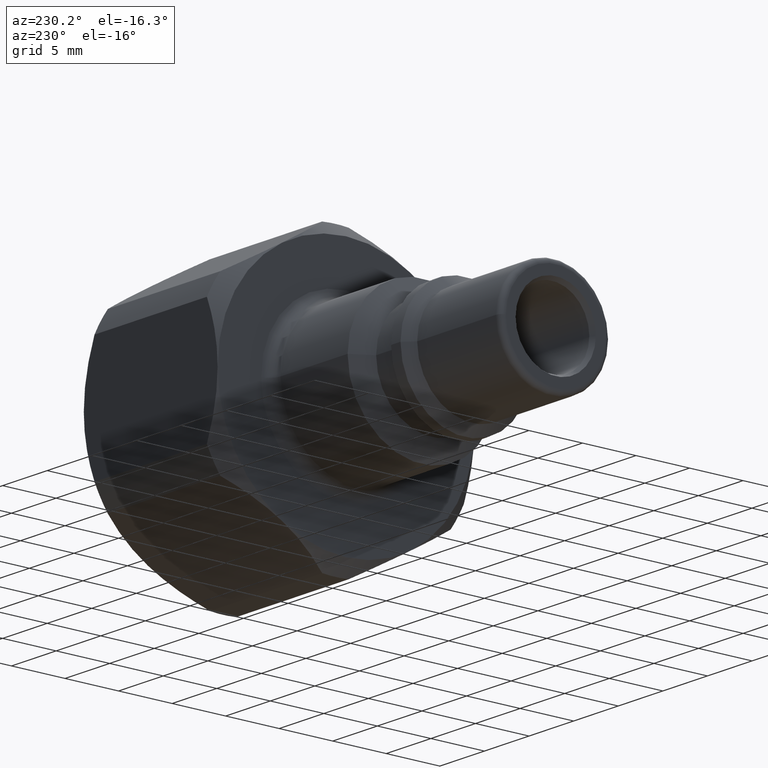
[diagram: clean part render]
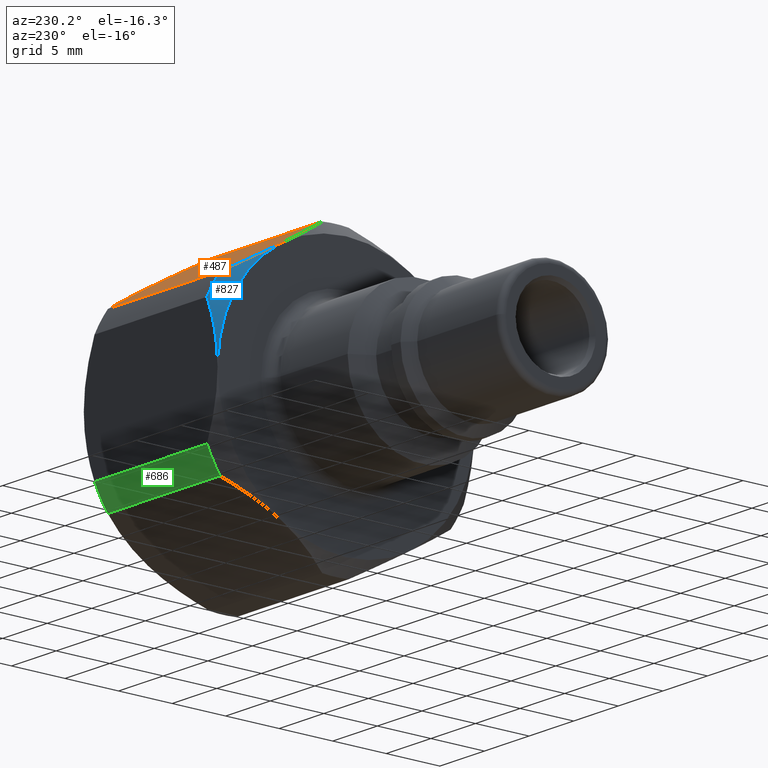
[diagram: same view with three faces highlighted in distinct colors, each labeled with its STEP entity id]
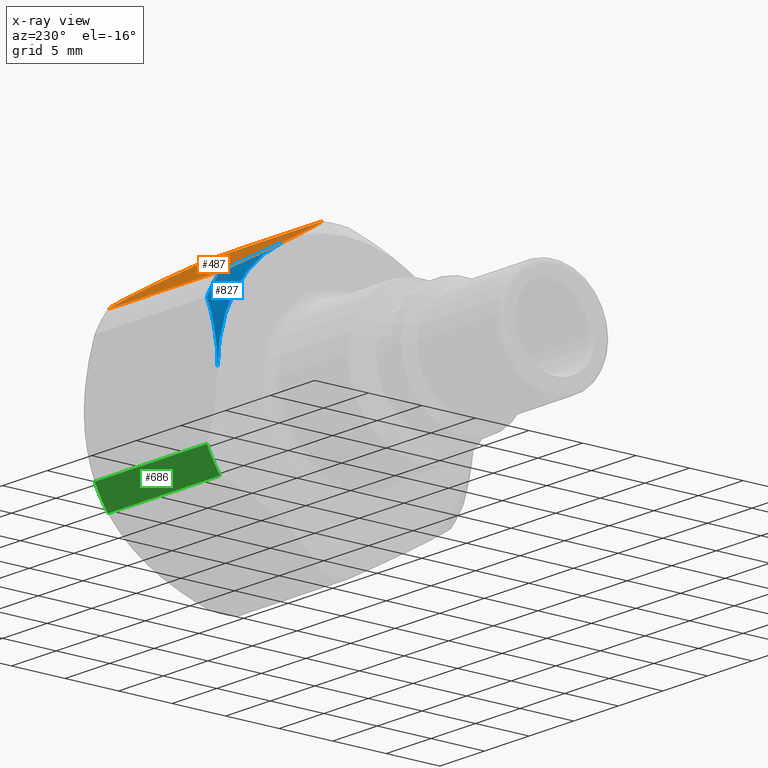
[diagram: x-ray of the same camera — body ghosted, the three highlighted faces saturated]
A machine part, auxiliary view with three faces highlighted in distinct colors.
The next image is the same camera in x-ray (body ghosted, the three faces saturated) — at least one of them is partly hidden behind the body in this view.
Their STEP definitions:

[orange] entity #487 — the highlighted planar face has unit normal (0, -0.5, -0.866).
#404=CARTESIAN_POINT('',(42.885558294457141,6.000000000000002,10.392304845413264));
#405=DIRECTION('',(0.0,-0.500000000000000,-0.866025403784439));
#406=DIRECTION('',(0.0,0.866025403784439,-0.500000000000000));
#407=AXIS2_PLACEMENT_3D('',#404,#405,#406);
#408=PLANE('',#407);
#409=CARTESIAN_POINT('',(24.699999999999996,1.237647640083741,13.141850262386768));
#410=VERTEX_POINT('',#409);
#411=CARTESIAN_POINT('',(23.499999999999996,6.000000000000002,10.392304845413264));
#412=VERTEX_POINT('',#411);
#413=CARTESIAN_POINT('',(24.699999999999996,1.237647640083745,13.141850262386768));
#414=CARTESIAN_POINT('',(23.500000000000000,3.732213161944646,11.701612186829216));
#415=CARTESIAN_POINT('',(23.500000000000000,6.000000000000002,10.392304845413264));
#423=(BOUNDED_CURVE()B_SPLINE_CURVE(2,(#413,#414,#415),.UNSPECIFIED.,.F.,.U.)B_SPLINE_CURVE_WITH_KNOTS((3,3),(0.0,0.565685500897023),.UNSPECIFIED.)CURVE()GEOMETRIC_REPRESENTATION_ITEM()RATIONAL_B_SPLINE_CURVE((1.0,1.024695076595943,1.0))REPRESENTATION_ITEM(''));
#424=EDGE_CURVE('',#410,#412,#423,.T.);
#425=ORIENTED_EDGE('',*,*,#424,.F.);
#426=CARTESIAN_POINT('',(37.299999999999990,1.237647640083741,13.141850262386768));
#427=VERTEX_POINT('',#426);
#428=CARTESIAN_POINT('',(37.299999999999990,1.237647640083741,13.141850262386768));
#429=DIRECTION('',(-1.0,0.0,0.0));
#430=VECTOR('',#429,12.599999999999994);
#431=LINE('',#428,#430);
#432=EDGE_CURVE('',#427,#410,#431,.T.);
#433=ORIENTED_EDGE('',*,*,#432,.F.);
#434=CARTESIAN_POINT('',(38.500000000000000,6.000000000000002,10.392304845413264));
#435=VERTEX_POINT('',#434);
#436=CARTESIAN_POINT('',(38.499999999999993,6.000000000000002,10.392304845413264));
#437=CARTESIAN_POINT('',(38.499999999999993,3.732213161944633,11.701612186829223));
#438=CARTESIAN_POINT('',(37.299999999999990,1.237647640083736,13.141850262386772));
#446=(BOUNDED_CURVE()B_SPLINE_CURVE(2,(#436,#437,#438),.UNSPECIFIED.,.F.,.U.)B_SPLINE_CURVE_WITH_KNOTS((3,3),(0.565685500897025,1.131371001794049),.UNSPECIFIED.)CURVE()GEOMETRIC_REPRESENTATION_ITEM()RATIONAL_B_SPLINE_CURVE((1.0,1.024695076595943,1.0))REPRESENTATION_ITEM(''));
#447=EDGE_CURVE('',#435,#427,#446,.T.);
#448=ORIENTED_EDGE('',*,*,#447,.F.);
#449=CARTESIAN_POINT('',(37.299999999999990,10.762352359916264,7.642759428439762));
#450=VERTEX_POINT('',#449);
#451=CARTESIAN_POINT('',(37.299999999999990,10.762352359916269,7.642759428439758));
#452=CARTESIAN_POINT('',(38.499999999999993,8.267786838055374,9.082997503997307));
#453=CARTESIAN_POINT('',(38.499999999999993,6.000000000000002,10.392304845413264));
#461=(BOUNDED_CURVE()B_SPLINE_CURVE(2,(#451,#452,#453),.UNSPECIFIED.,.F.,.U.)B_SPLINE_CURVE_WITH_KNOTS((3,3),(0.0,0.565685500897025),.UNSPECIFIED.)CURVE()GEOMETRIC_REPRESENTATION_ITEM()RATIONAL_B_SPLINE_CURVE((1.0,1.024695076595942,1.0))REPRESENTATION_ITEM(''));
#462=EDGE_CURVE('',#450,#435,#461,.T.);
#463=ORIENTED_EDGE('',*,*,#462,.F.);
#464=CARTESIAN_POINT('',(24.699999999999996,10.762352359916264,7.642759428439762));
#465=VERTEX_POINT('',#464);
#466=CARTESIAN_POINT('',(24.699999999999996,10.762352359916264,7.642759428439762));
#467=DIRECTION('',(1.0,0.0,0.0));
#468=VECTOR('',#467,12.599999999999994);
#469=LINE('',#466,#468);
#470=EDGE_CURVE('',#465,#450,#469,.T.);
#471=ORIENTED_EDGE('',*,*,#470,.F.);
#472=CARTESIAN_POINT('',(23.500000000000000,6.000000000000002,10.392304845413264));
#473=CARTESIAN_POINT('',(23.500000000000000,8.267786838055358,9.082997503997314));
#474=CARTESIAN_POINT('',(24.699999999999996,10.762352359916260,7.642759428439763));
#482=(BOUNDED_CURVE()B_SPLINE_CURVE(2,(#472,#473,#474),.UNSPECIFIED.,.F.,.U.)B_SPLINE_CURVE_WITH_KNOTS((3,3),(0.565685500897023,1.131371001794047),.UNSPECIFIED.)CURVE()GEOMETRIC_REPRESENTATION_ITEM()RATIONAL_B_SPLINE_CURVE((1.0,1.024695076595975,1.0))REPRESENTATION_ITEM(''));
#483=EDGE_CURVE('',#412,#465,#482,.T.);
#484=ORIENTED_EDGE('',*,*,#483,.F.);
#485=EDGE_LOOP('',(#425,#433,#448,#463,#471,#484));
#486=FACE_OUTER_BOUND('',#485,.T.);
#487=ADVANCED_FACE('',(#486),#408,.F.);

[blue] entity #827 — the highlighted conical surface has half-angle 45 deg.
#411=CARTESIAN_POINT('',(23.499999999999996,6.000000000000002,10.392304845413264));
#412=VERTEX_POINT('',#411);
#464=CARTESIAN_POINT('',(24.699999999999996,10.762352359916264,7.642759428439762));
#465=VERTEX_POINT('',#464);
#472=CARTESIAN_POINT('',(23.500000000000000,6.000000000000002,10.392304845413264));
#473=CARTESIAN_POINT('',(23.500000000000000,8.267786838055358,9.082997503997314));
#474=CARTESIAN_POINT('',(24.699999999999996,10.762352359916260,7.642759428439763));
#482=(BOUNDED_CURVE()B_SPLINE_CURVE(2,(#472,#473,#474),.UNSPECIFIED.,.F.,.U.)B_SPLINE_CURVE_WITH_KNOTS((3,3),(0.565685500897023,1.131371001794047),.UNSPECIFIED.)CURVE()GEOMETRIC_REPRESENTATION_ITEM()RATIONAL_B_SPLINE_CURVE((1.0,1.024695076595975,1.0))REPRESENTATION_ITEM(''));
#483=EDGE_CURVE('',#412,#465,#482,.T.);
#694=CARTESIAN_POINT('',(24.699999999999996,12.000000000000002,5.499090833947006));
#695=VERTEX_POINT('',#694);
#702=CARTESIAN_POINT('',(24.699999999999996,0.0,0.0));
#703=DIRECTION('',(1.0,0.0,0.0));
#704=DIRECTION('',(0.0,1.0,0.0));
#705=AXIS2_PLACEMENT_3D('',#702,#703,#704);
#706=CIRCLE('',#705,13.200000000000001);
#707=EDGE_CURVE('',#695,#465,#706,.T.);
#772=CARTESIAN_POINT('',(23.500000000000000,12.000000000000002,0.0));
#773=VERTEX_POINT('',#772);
#798=CARTESIAN_POINT('',(24.100000000000001,0.0,0.0));
#799=DIRECTION('',(1.0,0.0,0.0));
#800=DIRECTION('',(0.0,1.0,0.0));
#801=AXIS2_PLACEMENT_3D('',#798,#799,#800);
#802=CONICAL_SURFACE('',#801,12.600000000000001,45.000000000000057);
#803=ORIENTED_EDGE('',*,*,#483,.T.);
#804=ORIENTED_EDGE('',*,*,#707,.F.);
#805=CARTESIAN_POINT('',(24.699999999999996,12.000000000000002,5.499090833947003));
#806=CARTESIAN_POINT('',(23.500000000000000,12.000000000000002,2.618614682831908));
#807=CARTESIAN_POINT('',(23.500000000000000,12.000000000000002,0.0));
#815=(BOUNDED_CURVE()B_SPLINE_CURVE(2,(#805,#806,#807),.UNSPECIFIED.,.F.,.U.)B_SPLINE_CURVE_WITH_KNOTS((3,3),(0.0,0.565685500897023),.UNSPECIFIED.)CURVE()GEOMETRIC_REPRESENTATION_ITEM()RATIONAL_B_SPLINE_CURVE((1.0,1.024695076595972,1.0))REPRESENTATION_ITEM(''));
#816=EDGE_CURVE('',#695,#773,#815,.T.);
#817=ORIENTED_EDGE('',*,*,#816,.T.);
#818=CARTESIAN_POINT('',(23.500000000000000,0.0,0.0));
#819=DIRECTION('',(1.0,0.0,0.0));
#820=DIRECTION('',(0.0,1.0,0.0));
#821=AXIS2_PLACEMENT_3D('',#818,#819,#820);
#822=CIRCLE('',#821,12.000000000000002);
#823=EDGE_CURVE('',#773,#412,#822,.T.);
#824=ORIENTED_EDGE('',*,*,#823,.T.);
#825=EDGE_LOOP('',(#803,#804,#817,#824));
#826=FACE_OUTER_BOUND('',#825,.T.);
#827=ADVANCED_FACE('',(#826),#802,.T.);

[green] entity #686 — the highlighted cylindrical surface (partial cylindrical patch) has radius 13.2 mm, axis along (1, 0, 0).
#73=CARTESIAN_POINT('',(24.699999999999996,10.762352359916250,-7.642759428439780));
#74=VERTEX_POINT('',#73);
#90=CARTESIAN_POINT('',(37.299999999999990,10.762352359916250,-7.642759428439780));
#91=VERTEX_POINT('',#90);
#92=CARTESIAN_POINT('',(37.299999999999990,10.762352359916250,-7.642759428439780));
#93=DIRECTION('',(-1.0,0.0,0.0));
#94=VECTOR('',#93,12.599999999999994);
#95=LINE('',#92,#94);
#96=EDGE_CURVE('',#91,#74,#95,.T.);
#606=CARTESIAN_POINT('',(37.299999999999990,12.000000000000002,-5.499090833947006));
#607=VERTEX_POINT('',#606);
#608=CARTESIAN_POINT('',(37.299999999999997,0.0,0.0));
#609=DIRECTION('',(1.0,0.0,0.0));
#610=DIRECTION('',(0.0,1.0,0.0));
#611=AXIS2_PLACEMENT_3D('',#608,#609,#610);
#612=CIRCLE('',#611,13.200000000000001);
#613=EDGE_CURVE('',#91,#607,#612,.T.);
#662=CARTESIAN_POINT('',(30.999999999999996,0.0,0.0));
#663=DIRECTION('',(1.0,0.0,0.0));
#664=DIRECTION('',(0.0,1.0,0.0));
#665=AXIS2_PLACEMENT_3D('',#662,#663,#664);
#666=CYLINDRICAL_SURFACE('',#665,13.200000000000001);
#667=ORIENTED_EDGE('',*,*,#96,.T.);
#668=CARTESIAN_POINT('',(24.699999999999996,12.000000000000002,-5.499090833947006));
#669=VERTEX_POINT('',#668);
#670=CARTESIAN_POINT('',(24.699999999999996,0.0,0.0));
#671=DIRECTION('',(1.0,0.0,0.0));
#672=DIRECTION('',(0.0,1.0,0.0));
#673=AXIS2_PLACEMENT_3D('',#670,#671,#672);
#674=CIRCLE('',#673,13.200000000000001);
#675=EDGE_CURVE('',#74,#669,#674,.T.);
#676=ORIENTED_EDGE('',*,*,#675,.T.);
#677=CARTESIAN_POINT('',(24.699999999999996,12.000000000000002,-5.499090833947006));
#678=DIRECTION('',(1.0,0.0,0.0));
#679=VECTOR('',#678,12.599999999999994);
#680=LINE('',#677,#679);
#681=EDGE_CURVE('',#669,#607,#680,.T.);
#682=ORIENTED_EDGE('',*,*,#681,.T.);
#683=ORIENTED_EDGE('',*,*,#613,.F.);
#684=EDGE_LOOP('',(#667,#676,#682,#683));
#685=FACE_OUTER_BOUND('',#684,.T.);
#686=ADVANCED_FACE('',(#685),#666,.T.);